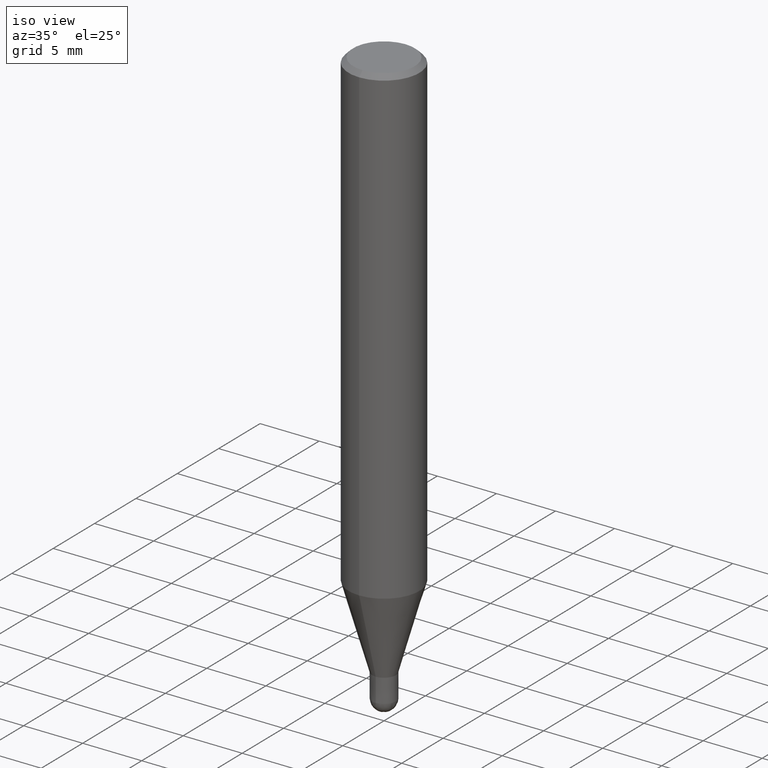
[diagram: clean part render]
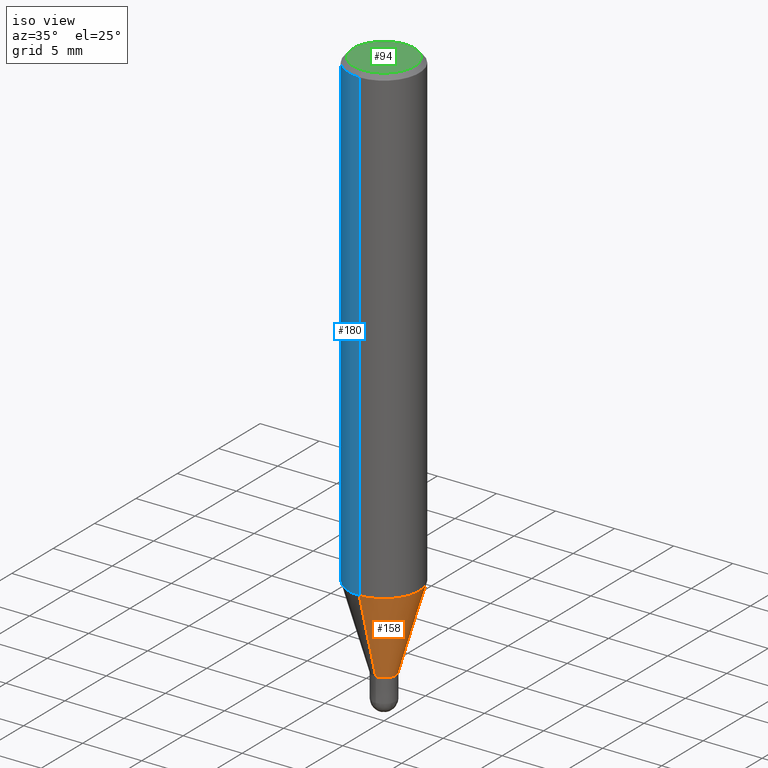
[diagram: same view with three faces highlighted in distinct colors, each labeled with its STEP entity id]
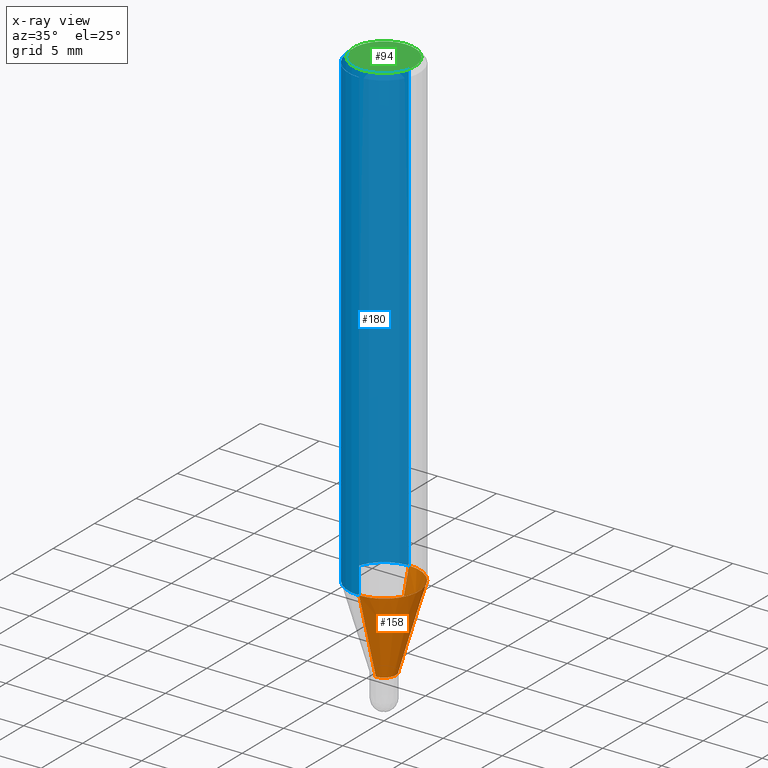
[diagram: x-ray of the same camera — body ghosted, the three highlighted faces saturated]
A machine part, iso view with three faces highlighted in distinct colors.
The next image is the same camera in x-ray (body ghosted, the three faces saturated) — at least one of them is partly hidden behind the body in this view.
Their STEP definitions:

[orange] entity #158 — the highlighted conical surface has half-angle 16 deg.
#98=VERTEX_POINT('',#229);
#112=VERTEX_POINT('',#243);
#114=EDGE_CURVE('',#154,#160,#245,.T.);
#130=EDGE_CURVE('',#154,#98,#262,.T.);
#142=EDGE_CURVE('',#112,#98,#276,.T.);
#144=EDGE_CURVE('',#160,#112,#278,.T.);
#154=VERTEX_POINT('',#290);
#158=ADVANCED_FACE('',(#294),#295,.T.);
#160=VERTEX_POINT('',#297);
#229=CARTESIAN_POINT('',(3.67375783114944E-016,-2.99995,-40.025));
#243=CARTESIAN_POINT('',(1.22454512350469E-016,-0.99995,-47.0));
#245=LINE('',#384,#385);
#262=CIRCLE('',#406,2.99995);
#276=LINE('',#421,#422);
#278=CIRCLE('',#425,0.99995);
#290=CARTESIAN_POINT('',(0.0,2.99995,-40.025));
#294=FACE_OUTER_BOUND('',#445,.T.);
#295=CONICAL_SURFACE('',#446,1.99995,0.279246180255813);
#297=CARTESIAN_POINT('',(0.0,0.99995,-47.0));
#384=CARTESIAN_POINT('',(-2.44915147732706E-016,1.99995,-43.5125));
#385=VECTOR('',#542,1.0);
#406=AXIS2_PLACEMENT_3D('',#557,#558,#559);
#421=CARTESIAN_POINT('',(2.44915147732706E-016,-1.99995,-43.5125));
#422=VECTOR('',#580,1.0);
#425=AXIS2_PLACEMENT_3D('',#581,#582,#583);
#445=EDGE_LOOP('',(#606,#607,#608,#609));
#446=AXIS2_PLACEMENT_3D('',#610,#611,#612);
#542=DIRECTION('',(3.37539605616001E-017,-0.275631107549324,-0.961263487578267));
#557=CARTESIAN_POINT('',(0.0,0.0,-40.025));
#558=DIRECTION('',(0.0,0.0,-1.0));
#559=DIRECTION('',(0.0,1.0,0.0));
#580=DIRECTION('',(3.37539605616001E-017,-0.275631107549324,0.961263487578267));
#581=CARTESIAN_POINT('',(0.0,0.0,-47.0));
#582=DIRECTION('',(0.0,0.0,-1.0));
#583=DIRECTION('',(0.0,1.0,0.0));
#606=ORIENTED_EDGE('',*,*,#114,.F.);
#607=ORIENTED_EDGE('',*,*,#130,.T.);
#608=ORIENTED_EDGE('',*,*,#142,.F.);
#609=ORIENTED_EDGE('',*,*,#144,.F.);
#610=CARTESIAN_POINT('',(0.0,0.0,-43.5125));
#611=DIRECTION('',(-0.0,-0.0,1.0));
#612=DIRECTION('',(0.0,1.0,0.0));

[blue] entity #180 — the highlighted cylindrical surface (partial cylindrical patch) has radius 3 mm, axis along (-0, -0, 1).
#100=VERTEX_POINT('',#231);
#106=EDGE_CURVE('',#100,#182,#237,.T.);
#116=EDGE_CURVE('',#184,#170,#247,.T.);
#126=EDGE_CURVE('',#100,#184,#258,.T.);
#162=EDGE_CURVE('',#170,#182,#299,.T.);
#170=VERTEX_POINT('',#308);
#180=ADVANCED_FACE('',(#319),#320,.T.);
#182=VERTEX_POINT('',#322);
#184=VERTEX_POINT('',#324);
#231=CARTESIAN_POINT('',(3.67381906146713E-016,-3.0,-40.025));
#237=CIRCLE('',#373,3.0);
#247=CIRCLE('',#388,3.0);
#258=LINE('',#400,#401);
#299=LINE('',#451,#452);
#308=CARTESIAN_POINT('',(0.0,3.0,-0.399999999999999));
#319=FACE_OUTER_BOUND('',#478,.T.);
#320=CYLINDRICAL_SURFACE('',#479,3.0);
#322=CARTESIAN_POINT('',(0.0,3.0,-40.025));
#324=CARTESIAN_POINT('',(3.67381906146713E-016,-3.0,-0.399999999999999));
#373=AXIS2_PLACEMENT_3D('',#533,#534,#535);
#388=AXIS2_PLACEMENT_3D('',#543,#544,#545);
#400=CARTESIAN_POINT('',(3.67381906146713E-016,-3.0,-20.2125));
#401=VECTOR('',#556,1.0);
#451=CARTESIAN_POINT('',(-3.67381906146713E-016,3.0,-20.2125));
#452=VECTOR('',#613,1.0);
#478=EDGE_LOOP('',(#637,#638,#639,#640));
#479=AXIS2_PLACEMENT_3D('',#641,#642,#643);
#533=CARTESIAN_POINT('',(0.0,0.0,-40.025));
#534=DIRECTION('',(0.0,0.0,-1.0));
#535=DIRECTION('',(0.0,1.0,0.0));
#543=CARTESIAN_POINT('',(0.0,0.0,-0.399999999999999));
#544=DIRECTION('',(0.0,0.0,-1.0));
#545=DIRECTION('',(0.0,1.0,0.0));
#556=DIRECTION('',(-0.0,-0.0,1.0));
#613=DIRECTION('',(0.0,0.0,-1.0));
#637=ORIENTED_EDGE('',*,*,#162,.T.);
#638=ORIENTED_EDGE('',*,*,#106,.F.);
#639=ORIENTED_EDGE('',*,*,#126,.T.);
#640=ORIENTED_EDGE('',*,*,#116,.T.);
#641=CARTESIAN_POINT('',(0.0,0.0,-20.2125));
#642=DIRECTION('',(-0.0,-0.0,1.0));
#643=DIRECTION('',(0.0,1.0,0.0));

[green] entity #94 — the highlighted planar face has unit normal (-0, 0, 1).
#90=VERTEX_POINT('',#218);
#94=ADVANCED_FACE('',(#223),#224,.T.);
#146=EDGE_CURVE('',#188,#90,#280,.T.);
#156=EDGE_CURVE('',#90,#188,#292,.T.);
#188=VERTEX_POINT('',#328);
#218=CARTESIAN_POINT('',(3.18397651993818E-016,-2.6,0.0));
#223=FACE_OUTER_BOUND('',#355,.T.);
#224=PLANE('',#356);
#280=CIRCLE('',#428,2.6);
#292=CIRCLE('',#443,2.6);
#328=CARTESIAN_POINT('',(0.0,2.6,0.0));
#355=EDGE_LOOP('',(#516,#517));
#356=AXIS2_PLACEMENT_3D('',#518,#519,#520);
#428=AXIS2_PLACEMENT_3D('',#584,#585,#586);
#443=AXIS2_PLACEMENT_3D('',#602,#603,#604);
#516=ORIENTED_EDGE('',*,*,#146,.F.);
#517=ORIENTED_EDGE('',*,*,#156,.F.);
#518=CARTESIAN_POINT('',(0.0,1.3,0.0));
#519=DIRECTION('',(-0.0,0.0,1.0));
#520=DIRECTION('',(0.0,-1.0,0.0));
#584=CARTESIAN_POINT('',(0.0,0.0,0.0));
#585=DIRECTION('',(0.0,0.0,-1.0));
#586=DIRECTION('',(0.0,1.0,0.0));
#602=CARTESIAN_POINT('',(0.0,0.0,0.0));
#603=DIRECTION('',(0.0,0.0,-1.0));
#604=DIRECTION('',(0.0,1.0,0.0));